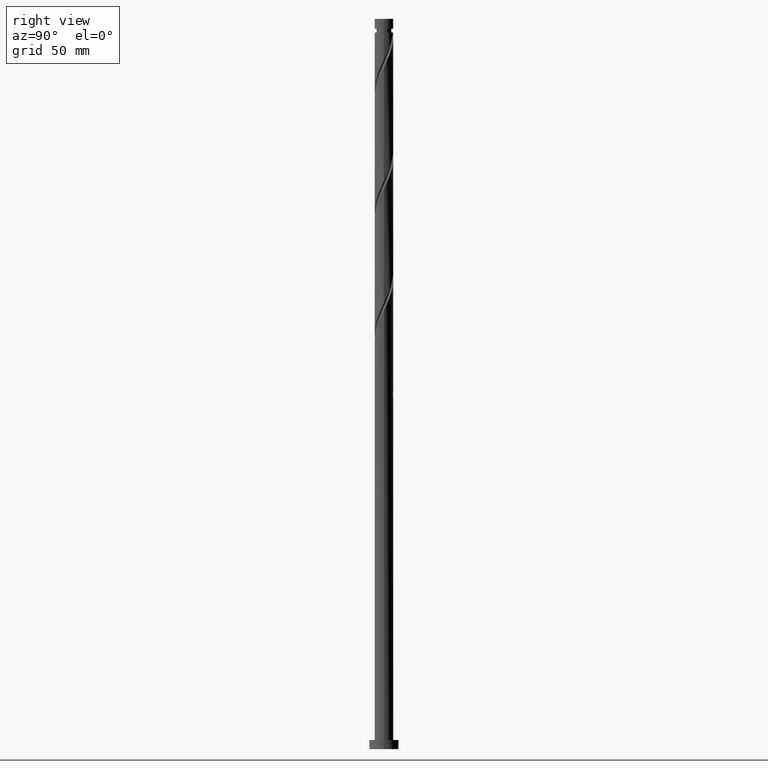
[diagram: clean part render]
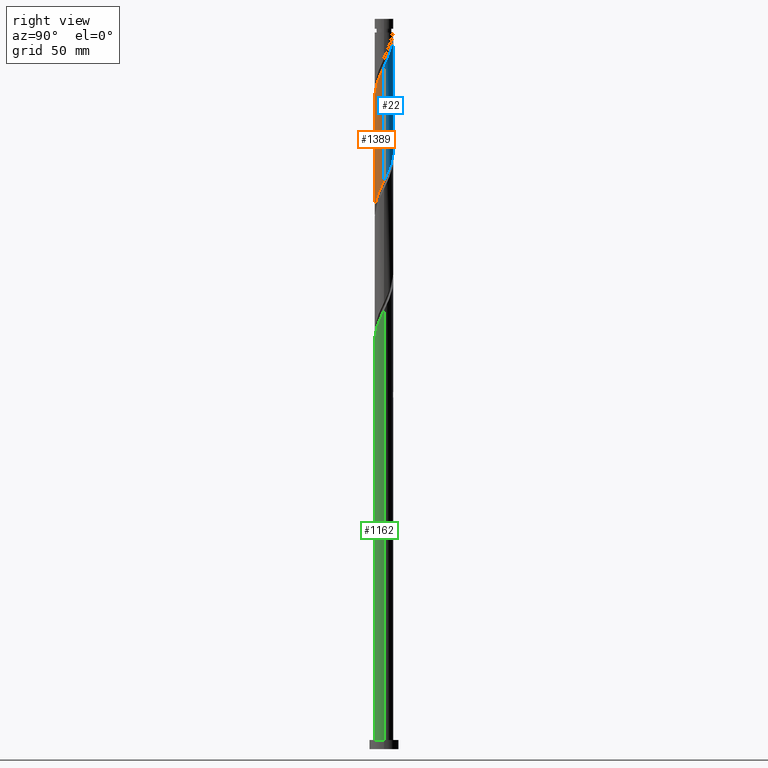
[diagram: same view with three faces highlighted in distinct colors, each labeled with its STEP entity id]
A machine part, right view with three faces highlighted in distinct colors.
Their STEP definitions:

[orange] entity #1389 — the highlighted cylindrical surface (edge-blend (fillet) strip) has radius 5.1 mm, axis along (-0, -0, -1).
#13 = CARTESIAN_POINT ( 'NONE',  ( 2.116689710232769972, -4.640002658468494801, 299.1884100595373752 ) ) ;
#18 = EDGE_CURVE ( 'NONE', #1560, #1776, #1267, .T. ) ;
#21 = CARTESIAN_POINT ( 'NONE',  ( -3.035145759683210098, -4.098522931188395724, 350.2995211706484042 ) ) ;
#36 = CARTESIAN_POINT ( 'NONE',  ( 4.703541288989194769, -2.043044105940181154, 306.9661878373151467 ) ) ;
#46 = CARTESIAN_POINT ( 'NONE',  ( 5.100000000000010303, -2.242262313099772279E-16, 373.7296334826825159 ) ) ;
#76 = EDGE_LOOP ( 'NONE', ( #1873, #561, #551, #1957 ) ) ;
#128 = CARTESIAN_POINT ( 'NONE',  ( 2.960015320744664891, -4.153108390224959479, 363.6328545039818323 ) ) ;
#142 = CARTESIAN_POINT ( 'NONE',  ( 4.393329915788834583, -2.590106609974761387, 368.0772989484262894 ) ) ;
#147 = CARTESIAN_POINT ( 'NONE',  ( 5.076705030977432642, -0.4868942682435490332, 310.2995211706486316 ) ) ;
#159 = CARTESIAN_POINT ( 'NONE',  ( -2.523506039414606050, -4.464218536886502164, 289.1884100595374321 ) ) ;
#169 = CARTESIAN_POINT ( 'NONE',  ( -4.439763080642554094, -2.509682009291900329, 345.8550767262038903 ) ) ;
#173 = CARTESIAN_POINT ( 'NONE',  ( 5.099999999999999645, 4.275246810310268444E-15, 311.3138533030589201 ) ) ;
#186 = CARTESIAN_POINT ( 'NONE',  ( 1.629005779183731795, -4.862475711757238805, 298.0772989484262325 ) ) ;
#200 = CARTESIAN_POINT ( 'NONE',  ( 0.000000000000000000, 0.000000000000000000, 400.0000000000000000 ) ) ;
#245 = CARTESIAN_POINT ( 'NONE',  ( -5.100000000000010303, -8.580390451461796036E-15, 340.3963001493492584 ) ) ;
#256 = CARTESIAN_POINT ( 'NONE',  ( 5.099999999999999645, 4.275246810310268444E-15, 311.3138533030589201 ) ) ;
#306 = CARTESIAN_POINT ( 'NONE',  ( 5.100000000000010303, -0.2905660609768122571, 373.1240421732980508 ) ) ;
#314 = VECTOR ( 'NONE', #583, 1000.000000000000000 ) ;
#320 = CARTESIAN_POINT ( 'NONE',  ( 1.014887185848756701, -4.998000000000008214, 359.1884100595373752 ) ) ;
#349 = CARTESIAN_POINT ( 'NONE',  ( -5.006116031791203902, -1.111814801253403262, 280.2995211706484611 ) ) ;
#399 =( BOUNDED_CURVE ( )  B_SPLINE_CURVE ( 2, ( #1803, #1029, #950, #456, #1121, #496, #169, #1582, #791, #1883, #21, #1863, #804, #1542, #1093, #1850, #1430, #1278, #320, #767, #1896, #937, #128, #1736, #484, #647, #142, #1137, #1696, #1708, #2015, #306, #1720 ),
 .UNSPECIFIED., .F., .T. ) 
 B_SPLINE_CURVE_WITH_KNOTS ( ( 3, 2, 2, 2, 2, 2, 2, 2, 2, 2, 2, 2, 2, 2, 2, 2, 3 ),
 ( 0.5545286012773116280, 0.5583333333333333481, 0.5666666666666666519, 0.5749999999999999556, 0.5833333333333332593, 0.5916666666666666741, 0.5999999999999999778, 0.6083333333333333925, 0.6166666666666666963, 0.6250000000000000000, 0.6333333333333333037, 0.6416666666666666075, 0.6500000000000000222, 0.6583333333333333259, 0.6666666666666667407, 0.6750000000000000444, 0.6795286012773114059 ),
 .UNSPECIFIED. ) 
 CURVE ( )  GEOMETRIC_REPRESENTATION_ITEM ( )  RATIONAL_B_SPLINE_CURVE ( ( 0.9066196499552303667, 0.9068171577856432020, 0.9090909090909421453, 0.9041108139711903080, 0.9090909090909421453, 0.9041108139711903080, 0.9090909090909421453, 0.9041108139711903080, 0.9090909090909421453, 0.9041108139711903080, 0.9090909090909421453, 0.9041108139711903080, 0.9090909090909421453, 0.9041108139711903080, 0.9090909090909421453, 0.9041108139711903080, 0.9090909090909421453, 0.9041108139711903080, 0.9090909090909421453, 0.9041108139711903080, 0.9090909090909421453, 0.9041108139711903080, 0.9090909090909421453, 0.9041108139711903080, 0.9090909090909421453, 0.9041108139711903080, 0.9090909090909421453, 0.9041108139711903080, 0.9090909090909421453, 0.9041108139711903080, 0.9090909090909421453, 0.9063845652764892513, 0.9066196499552303667 ) ) 
 REPRESENTATION_ITEM ( '' )  );
#445 = DIRECTION ( 'NONE',  ( -0.000000000000000000, -0.000000000000000000, -1.000000000000000000 ) ) ;
#447 = CARTESIAN_POINT ( 'NONE',  ( 1.105724163441033081, -4.978692004370487645, 296.9661878373151467 ) ) ;
#456 = CARTESIAN_POINT ( 'NONE',  ( -5.025530381258464629, -1.020477468193842885, 342.5217433928709170 ) ) ;
#461 = CARTESIAN_POINT ( 'NONE',  ( -4.393329915788831030, -2.590106609974752505, 283.6328545039817755 ) ) ;
#473 = CARTESIAN_POINT ( 'NONE',  ( 5.100000000000001421, 6.245698675651501825E-16, 400.0000000000000000 ) ) ;
#476 = CYLINDRICAL_SURFACE ( 'NONE', #1649, 5.100000000000001421 ) ;
#484 = CARTESIAN_POINT ( 'NONE',  ( 3.758811671682795286, -3.446931217303483397, 365.8550767262038903 ) ) ;
#488 = CARTESIAN_POINT ( 'NONE',  ( 5.025530381258454860, -1.020477468193842663, 309.1884100595373184 ) ) ;
#496 = CARTESIAN_POINT ( 'NONE',  ( -4.703541288989206315, -2.043044105940181154, 344.7439656150928613 ) ) ;
#551 = ORIENTED_EDGE ( 'NONE', *, *, #1967, .T. ) ;
#556 = CARTESIAN_POINT ( 'NONE',  ( -5.100000000000001421, 0.000000000000000000, 400.0000000000000000 ) ) ;
#559 = VERTEX_POINT ( 'NONE', #245 ) ;
#561 = ORIENTED_EDGE ( 'NONE', *, *, #1970, .F. ) ;
#583 = DIRECTION ( 'NONE',  ( -0.000000000000000000, -0.000000000000000000, -1.000000000000000000 ) ) ;
#610 = CARTESIAN_POINT ( 'NONE',  ( -1.014887185848756923, -4.998000000000000220, 292.5217433928708601 ) ) ;
#626 = CARTESIAN_POINT ( 'NONE',  ( 4.864535835123822594, -1.531760787067013796, 308.0772989484263462 ) ) ;
#639 = CARTESIAN_POINT ( 'NONE',  ( -2.960015320744664002, -4.153108390224947932, 288.0772989484262894 ) ) ;
#647 = CARTESIAN_POINT ( 'NONE',  ( 4.121098741290865064, -3.051864191043566876, 366.9661878373153172 ) ) ;
#661 = CARTESIAN_POINT ( 'NONE',  ( 4.439763080642545212, -2.509682009291898552, 305.8550767262040608 ) ) ;
#767 = CARTESIAN_POINT ( 'NONE',  ( 1.540198153706607842, -4.891331058450442804, 360.2995211706486316 ) ) ;
#772 = CARTESIAN_POINT ( 'NONE',  ( 5.100000000000001421, -0.2440043963624089207, 310.8053047774948823 ) ) ;
#791 = CARTESIAN_POINT ( 'NONE',  ( -3.820951375190253074, -3.377918084920325192, 348.0772989484262894 ) ) ;
#804 = CARTESIAN_POINT ( 'NONE',  ( -2.116689710232775745, -4.640002658468502794, 352.5217433928706328 ) ) ;
#810 = CARTESIAN_POINT ( 'NONE',  ( 3.465917878084596282, -3.779516257197027773, 302.5217433928707464 ) ) ;
#824 = CARTESIAN_POINT ( 'NONE',  ( -4.121098741290859735, -3.051864191043557994, 284.7439656150929750 ) ) ;
#937 = CARTESIAN_POINT ( 'NONE',  ( 2.523506039414608271, -4.464218536886513711, 362.5217433928705759 ) ) ;
#941 = CARTESIAN_POINT ( 'NONE',  ( 4.175984872295889438, -2.976319912643619059, 304.7439656150928613 ) ) ;
#950 = CARTESIAN_POINT ( 'NONE',  ( -5.076705030977442412, -0.4868942682435451474, 341.4106322817595469 ) ) ;
#966 = CARTESIAN_POINT ( 'NONE',  ( 2.604373641281805707, -4.417529605179755237, 300.2995211706485179 ) ) ;
#975 = VERTEX_POINT ( 'NONE', #1717 ) ;
#978 = DIRECTION ( 'NONE',  ( -1.000000000000000000, 0.000000000000000000, 0.000000000000000000 ) ) ;
#1021 =( BOUNDED_CURVE ( )  B_SPLINE_CURVE ( 2, ( #173, #772, #147, #488, #626, #36, #661, #941, #1568, #810, #1699, #966, #13, #186, #447, #1458, #1690, #1901, #610, #1853, #1141, #159, #639, #1865, #1740, #824, #461, #1257, #1097, #349, #1110, #1556, #1585 ),
 .UNSPECIFIED., .F., .T. ) 
 B_SPLINE_CURVE_WITH_KNOTS ( ( 3, 2, 2, 2, 2, 2, 2, 2, 2, 2, 2, 2, 2, 2, 2, 2, 3 ),
 ( 0.5545286012773111839, 0.5583333333333333481, 0.5666666666666666519, 0.5749999999999999556, 0.5833333333333333703, 0.5916666666666666741, 0.5999999999999999778, 0.6083333333333332815, 0.6166666666666666963, 0.6250000000000000000, 0.6333333333333333037, 0.6416666666666667185, 0.6500000000000000222, 0.6583333333333333259, 0.6666666666666666297, 0.6750000000000000444, 0.6795286012773114059 ),
 .UNSPECIFIED. ) 
 CURVE ( )  GEOMETRIC_REPRESENTATION_ITEM ( )  RATIONAL_B_SPLINE_CURVE ( ( 0.9066196499552228172, 0.9068171577856354304, 0.9090909090909344847, 0.9041108139711828695, 0.9090909090909344847, 0.9041108139711828695, 0.9090909090909344847, 0.9041108139711828695, 0.9090909090909344847, 0.9041108139711828695, 0.9090909090909344847, 0.9041108139711828695, 0.9090909090909344847, 0.9041108139711828695, 0.9090909090909344847, 0.9041108139711828695, 0.9090909090909344847, 0.9041108139711828695, 0.9090909090909344847, 0.9041108139711828695, 0.9090909090909344847, 0.9041108139711828695, 0.9090909090909344847, 0.9041108139711828695, 0.9090909090909344847, 0.9041108139711828695, 0.9090909090909344847, 0.9041108139711828695, 0.9090909090909344847, 0.9041108139711828695, 0.9090909090909344847, 0.9063845652764817018, 0.9066196499552228172 ) ) 
 REPRESENTATION_ITEM ( '' )  );
#1029 = CARTESIAN_POINT ( 'NONE',  ( -5.100000000000010303, -0.2440043963624325962, 340.9048486749133531 ) ) ;
#1093 = CARTESIAN_POINT ( 'NONE',  ( -1.105724163441039520, -4.978692004370494750, 354.7439656150928045 ) ) ;
#1097 = CARTESIAN_POINT ( 'NONE',  ( -4.835838561039001782, -1.620081915079675916, 281.4106322817594901 ) ) ;
#1110 = CARTESIAN_POINT ( 'NONE',  ( -5.066997856243808052, -0.5792518664800759831, 279.1884100595373752 ) ) ;
#1121 = CARTESIAN_POINT ( 'NONE',  ( -4.864535835123834140, -1.531760787067011576, 343.6328545039817186 ) ) ;
#1137 = CARTESIAN_POINT ( 'NONE',  ( 4.665561090286807655, -2.128349028905956786, 369.1884100595374889 ) ) ;
#1141 = CARTESIAN_POINT ( 'NONE',  ( -2.031852096560608167, -4.677774797668464934, 290.2995211706485179 ) ) ;
#1142 = VECTOR ( 'NONE', #445, 1000.000000000000000 ) ;
#1257 = CARTESIAN_POINT ( 'NONE',  ( -4.665561090286799661, -2.128349028905950568, 282.5217433928707464 ) ) ;
#1267 = LINE ( 'NONE', #473, #1142 ) ;
#1278 = CARTESIAN_POINT ( 'NONE',  ( 0.4895762179909043388, -5.104668941549578065, 358.0772989484262894 ) ) ;
#1366 = EDGE_CURVE ( 'NONE', #1776, #975, #1021, .T. ) ;
#1389 = ADVANCED_FACE ( 'NONE', ( #1875 ), #476, .T. ) ;
#1430 = CARTESIAN_POINT ( 'NONE',  ( -0.04643316485371892788, -5.099788619266663048, 356.9661878373150898 ) ) ;
#1458 = CARTESIAN_POINT ( 'NONE',  ( 0.5824425476983365879, -5.094908296983735596, 295.8550767262040608 ) ) ;
#1542 = CARTESIAN_POINT ( 'NONE',  ( -1.629005779183739344, -4.862475711757246799, 353.6328545039818891 ) ) ;
#1556 = CARTESIAN_POINT ( 'NONE',  ( -5.099999999999998757, -0.2905660609768085934, 278.5861112791100709 ) ) ;
#1560 = VERTEX_POINT ( 'NONE', #46 ) ;
#1568 = CARTESIAN_POINT ( 'NONE',  ( 3.820951375190243748, -3.377918084920323860, 303.6328545039817186 ) ) ;
#1582 = CARTESIAN_POINT ( 'NONE',  ( -4.175984872295902761, -2.976319912643621279, 346.9661878373151467 ) ) ;
#1585 = CARTESIAN_POINT ( 'NONE',  ( -5.099999999999999645, -6.517509123410059360E-15, 277.9805199697255489 ) ) ;
#1649 = AXIS2_PLACEMENT_3D ( 'NONE', #200, #1712, #978 ) ;
#1690 = CARTESIAN_POINT ( 'NONE',  ( 0.04643316485371448699, -5.099788619266650613, 294.7439656150929750 ) ) ;
#1696 = CARTESIAN_POINT ( 'NONE',  ( 4.835838561039007999, -1.620081915079683466, 370.2995211706484611 ) ) ;
#1699 = CARTESIAN_POINT ( 'NONE',  ( 3.035145759683200772, -4.098522931188392171, 301.4106322817594332 ) ) ;
#1708 = CARTESIAN_POINT ( 'NONE',  ( 5.006116031791212784, -1.111814801253410590, 371.4106322817596038 ) ) ;
#1712 = DIRECTION ( 'NONE',  ( -0.000000000000000000, -0.000000000000000000, -1.000000000000000000 ) ) ;
#1717 = CARTESIAN_POINT ( 'NONE',  ( -5.099999999999999645, -6.517509123410059360E-15, 277.9805199697255489 ) ) ;
#1720 = CARTESIAN_POINT ( 'NONE',  ( 5.100000000000010303, -2.242262313099772279E-16, 373.7296334826825159 ) ) ;
#1736 = CARTESIAN_POINT ( 'NONE',  ( 3.396524602074725951, -3.841998243563404802, 364.7439656150929750 ) ) ;
#1740 = CARTESIAN_POINT ( 'NONE',  ( -3.758811671682789957, -3.446931217303477180, 285.8550767262040040 ) ) ;
#1776 = VERTEX_POINT ( 'NONE', #256 ) ;
#1803 = CARTESIAN_POINT ( 'NONE',  ( -5.100000000000010303, -8.580390451461796036E-15, 340.3963001493492584 ) ) ;
#1850 = CARTESIAN_POINT ( 'NONE',  ( -0.5824425476983398076, -5.094908296983747142, 355.8550767262040608 ) ) ;
#1853 = CARTESIAN_POINT ( 'NONE',  ( -1.540198153706608508, -4.891331058450428593, 291.4106322817595469 ) ) ;
#1863 = CARTESIAN_POINT ( 'NONE',  ( -2.604373641281813256, -4.417529605179761454, 351.4106322817596606 ) ) ;
#1865 = CARTESIAN_POINT ( 'NONE',  ( -3.396524602074721955, -3.841998243563394144, 286.9661878373152035 ) ) ;
#1873 = ORIENTED_EDGE ( 'NONE', *, *, #18, .F. ) ;
#1875 = FACE_OUTER_BOUND ( 'NONE', #76, .T. ) ;
#1883 = CARTESIAN_POINT ( 'NONE',  ( -3.465917878084604720, -3.779516257197033546, 349.1884100595374321 ) ) ;
#1896 = CARTESIAN_POINT ( 'NONE',  ( 2.031852096560607279, -4.677774797668475593, 361.4106322817596606 ) ) ;
#1901 = CARTESIAN_POINT ( 'NONE',  ( -0.4895762179909078915, -5.104668941549565631, 293.6328545039817755 ) ) ;
#1954 = LINE ( 'NONE', #556, #314 ) ;
#1957 = ORIENTED_EDGE ( 'NONE', *, *, #1366, .F. ) ;
#1967 = EDGE_CURVE ( 'NONE', #559, #975, #1954, .T. ) ;
#1970 = EDGE_CURVE ( 'NONE', #559, #1560, #399, .T. ) ;
#2015 = CARTESIAN_POINT ( 'NONE',  ( 5.066997856243816045, -0.5792518664800790917, 372.5217433928707464 ) ) ;

[blue] entity #22 — the highlighted cylindrical surface (edge-blend (fillet) strip) has radius 5.1 mm, axis along (-0, -0, -1).
#18 = EDGE_CURVE ( 'NONE', #1560, #1776, #1267, .T. ) ;
#22 = ADVANCED_FACE ( 'NONE', ( #1083 ), #1722, .T. ) ;
#33 = DIRECTION ( 'NONE',  ( -1.000000000000000000, 0.000000000000000000, 0.000000000000000000 ) ) ;
#46 = CARTESIAN_POINT ( 'NONE',  ( 5.100000000000010303, -2.242262313099772279E-16, 373.7296334826825159 ) ) ;
#82 = CARTESIAN_POINT ( 'NONE',  ( 4.864535835123834140, 1.531760787067009799, 376.9661878373151467 ) ) ;
#96 = CARTESIAN_POINT ( 'NONE',  ( -1.105724163441035079, 4.978692004370486757, 330.2995211706483474 ) ) ;
#103 = CARTESIAN_POINT ( 'NONE',  ( -0.04643316485371556945, 5.099788619266650613, 328.0772989484261757 ) ) ;
#112 = CARTESIAN_POINT ( 'NONE',  ( -3.820951375190244637, 3.377918084920321196, 336.9661878373152035 ) ) ;
#120 = CARTESIAN_POINT ( 'NONE',  ( 4.393329915788831030, 2.590106609974751617, 316.9661878373152604 ) ) ;
#247 = CARTESIAN_POINT ( 'NONE',  ( -5.025530381258454860, 1.020477468193841775, 342.5217433928706896 ) ) ;
#256 = CARTESIAN_POINT ( 'NONE',  ( 5.099999999999999645, 4.275246810310268444E-15, 311.3138533030589201 ) ) ;
#265 = CARTESIAN_POINT ( 'NONE',  ( 2.960015320744665779, 4.153108390224945268, 321.4106322817596038 ) ) ;
#271 = CARTESIAN_POINT ( 'NONE',  ( -1.629005779183733349, 4.862475711757238805, 331.4106322817596038 ) ) ;
#284 = CARTESIAN_POINT ( 'NONE',  ( -5.100000000000000533, 3.901536424793636099E-15, 344.6471866363921777 ) ) ;
#333 = DIRECTION ( 'NONE',  ( -0.000000000000000000, -0.000000000000000000, -1.000000000000000000 ) ) ;
#334 = ORIENTED_EDGE ( 'NONE', *, *, #1332, .T. ) ;
#369 = CARTESIAN_POINT ( 'NONE',  ( 5.025530381258464629, 1.020477468193841997, 375.8550767262041177 ) ) ;
#386 = CARTESIAN_POINT ( 'NONE',  ( 2.116689710232775745, 4.640002658468502794, 385.8550767262040040 ) ) ;
#395 = CARTESIAN_POINT ( 'NONE',  ( -5.099999999999966782, 0.000000000000000000, 392.5217433928706896 ) ) ;
#402 = CARTESIAN_POINT ( 'NONE',  ( -4.439763080642545212, 2.509682009291897664, 339.1884100595374321 ) ) ;
#418 = CARTESIAN_POINT ( 'NONE',  ( -2.116689710232770416, 4.640002658468494801, 332.5217433928706896 ) ) ;
#426 = DIRECTION ( 'NONE',  ( -0.000000000000000000, -0.000000000000000000, -1.000000000000000000 ) ) ;
#445 = DIRECTION ( 'NONE',  ( -0.000000000000000000, -0.000000000000000000, -1.000000000000000000 ) ) ;
#473 = CARTESIAN_POINT ( 'NONE',  ( 5.100000000000001421, 6.245698675651501825E-16, 400.0000000000000000 ) ) ;
#516 = VECTOR ( 'NONE', #598, 1000.000000000000000 ) ;
#530 = CARTESIAN_POINT ( 'NONE',  ( -1.014887185848756035, 4.998000000000004661, 392.5217433928708033 ) ) ;
#534 = AXIS2_PLACEMENT_3D ( 'NONE', #1687, #333, #33 ) ;
#552 = CARTESIAN_POINT ( 'NONE',  ( -5.100000000000001421, 0.000000000000000000, 400.0000000000000000 ) ) ;
#565 = CARTESIAN_POINT ( 'NONE',  ( 4.835838561039002670, 1.620081915079673918, 314.7439656150929750 ) ) ;
#573 = CARTESIAN_POINT ( 'NONE',  ( -2.604373641281807039, 4.417529605179755237, 333.6328545039818323 ) ) ;
#586 = CARTESIAN_POINT ( 'NONE',  ( 0.000000000000000000, 0.000000000000000000, 392.5217433928706896 ) ) ;
#589 = ORIENTED_EDGE ( 'NONE', *, *, #18, .T. ) ;
#591 = VERTEX_POINT ( 'NONE', #1340 ) ;
#598 = DIRECTION ( 'NONE',  ( -0.000000000000000000, -0.000000000000000000, -1.000000000000000000 ) ) ;
#675 = CARTESIAN_POINT ( 'NONE',  ( 3.035145759683210098, 4.098522931188395724, 383.6328545039817186 ) ) ;
#688 = ORIENTED_EDGE ( 'NONE', *, *, #1157, .F. ) ;
#690 = CARTESIAN_POINT ( 'NONE',  ( 3.465917878084604720, 3.779516257197033546, 382.5217433928706328 ) ) ;
#709 = DIRECTION ( 'NONE',  ( -1.000000000000000000, 0.000000000000000000, 0.000000000000000000 ) ) ;
#725 = CARTESIAN_POINT ( 'NONE',  ( 5.099999999999999645, 4.275246810310268444E-15, 311.3138533030589201 ) ) ;
#782 = ORIENTED_EDGE ( 'NONE', *, *, #1459, .F. ) ;
#812 =( BOUNDED_CURVE ( )  B_SPLINE_CURVE ( 2, ( #284, #1360, #1647, #247, #1990, #1972, #402, #1059, #112, #1980, #1828, #573, #418, #271, #96, #1961, #103, #1370, #1655, #1660, #884, #1072, #265, #878, #1377, #1509, #120, #1386, #565, #896, #1204, #1518, #725 ),
 .UNSPECIFIED., .F., .T. ) 
 B_SPLINE_CURVE_WITH_KNOTS ( ( 3, 2, 2, 2, 2, 2, 2, 2, 2, 2, 2, 2, 2, 2, 2, 2, 3 ),
 ( 0.4295286012773115170, 0.4333333333333333481, 0.4416666666666666519, 0.4500000000000000111, 0.4583333333333333148, 0.4666666666666666741, 0.4749999999999999778, 0.4833333333333333370, 0.4916666666666666408, 0.5000000000000000000, 0.5083333333333333037, 0.5166666666666667185, 0.5250000000000000222, 0.5333333333333333259, 0.5416666666666666297, 0.5500000000000000444, 0.5545286012773111839 ),
 .UNSPECIFIED. ) 
 CURVE ( )  GEOMETRIC_REPRESENTATION_ITEM ( )  RATIONAL_B_SPLINE_CURVE ( ( 0.9066196499552229282, 0.9068171577856356524, 0.9090909090909344847, 0.9041108139711828695, 0.9090909090909344847, 0.9041108139711828695, 0.9090909090909344847, 0.9041108139711828695, 0.9090909090909344847, 0.9041108139711828695, 0.9090909090909344847, 0.9041108139711828695, 0.9090909090909344847, 0.9041108139711828695, 0.9090909090909344847, 0.9041108139711828695, 0.9090909090909344847, 0.9041108139711828695, 0.9090909090909344847, 0.9041108139711828695, 0.9090909090909344847, 0.9041108139711828695, 0.9090909090909344847, 0.9041108139711828695, 0.9090909090909344847, 0.9041108139711828695, 0.9090909090909344847, 0.9041108139711828695, 0.9090909090909344847, 0.9041108139711828695, 0.9090909090909344847, 0.9063845652764819238, 0.9066196499552228172 ) ) 
 REPRESENTATION_ITEM ( '' )  );
#853 = CARTESIAN_POINT ( 'NONE',  ( 5.100000000000011191, 0.2440043963624162204, 374.2381820082465538 ) ) ;
#865 = CARTESIAN_POINT ( 'NONE',  ( 4.175984872295905426, 2.976319912643619947, 380.2995211706486316 ) ) ;
#870 = CARTESIAN_POINT ( 'NONE',  ( 2.604373641281815921, 4.417529605179759677, 384.7439656150929750 ) ) ;
#878 = CARTESIAN_POINT ( 'NONE',  ( 3.396524602074722399, 3.841998243563394144, 320.2995211706484611 ) ) ;
#884 = CARTESIAN_POINT ( 'NONE',  ( 2.031852096560608611, 4.677774797668464934, 323.6328545039817755 ) ) ;
#896 = CARTESIAN_POINT ( 'NONE',  ( 5.006116031791203902, 1.111814801253401486, 313.6328545039818323 ) ) ;
#898 =( BOUNDED_CURVE ( )  B_SPLINE_CURVE ( 2, ( #1302, #853, #1946, #369, #82, #1763, #1630, #865, #1023, #690, #675, #870, #386, #1334, #1312, #1639, #1612, #1489, #998 ),
 .UNSPECIFIED., .F., .T. ) 
 B_SPLINE_CURVE_WITH_KNOTS ( ( 3, 2, 2, 2, 2, 2, 2, 2, 2, 3 ),
 ( 0.6795286012773114059, 0.6833333333333333481, 0.6916666666666666519, 0.6999999999999999556, 0.7083333333333332593, 0.7166666666666666741, 0.7249999999999999778, 0.7333333333333333925, 0.7416666666666666963, 0.7500000000000000000 ),
 .UNSPECIFIED. ) 
 CURVE ( )  GEOMETRIC_REPRESENTATION_ITEM ( )  RATIONAL_B_SPLINE_CURVE ( ( 0.9066196499552303667, 0.9068171577856432020, 0.9090909090909421453, 0.9041108139711903080, 0.9090909090909421453, 0.9041108139711903080, 0.9090909090909421453, 0.9041108139711903080, 0.9090909090909421453, 0.9041108139711903080, 0.9090909090909421453, 0.9041108139711903080, 0.9090909090909421453, 0.9041108139711903080, 0.9090909090909421453, 0.9041108139711903080, 0.9090909090909421453, 0.9041108139711903080, 0.9090909090909421453 ) ) 
 REPRESENTATION_ITEM ( '' )  );
#935 = VERTEX_POINT ( 'NONE', #530 ) ;
#998 = CARTESIAN_POINT ( 'NONE',  ( -1.014887185848756035, 4.998000000000003773, 392.5217433928707464 ) ) ;
#1000 = LINE ( 'NONE', #552, #516 ) ;
#1023 = CARTESIAN_POINT ( 'NONE',  ( 3.820951375190254407, 3.377918084920323416, 381.4106322817594901 ) ) ;
#1059 = CARTESIAN_POINT ( 'NONE',  ( -4.175984872295892991, 2.976319912643616838, 338.0772989484262894 ) ) ;
#1072 = CARTESIAN_POINT ( 'NONE',  ( 2.523506039414606050, 4.464218536886502164, 322.5217433928706896 ) ) ;
#1083 = FACE_OUTER_BOUND ( 'NONE', #1910, .T. ) ;
#1142 = VECTOR ( 'NONE', #445, 1000.000000000000000 ) ;
#1157 = EDGE_CURVE ( 'NONE', #1641, #591, #1000, .T. ) ;
#1204 = CARTESIAN_POINT ( 'NONE',  ( 5.066997856243808052, 0.5792518664800752060, 312.5217433928707464 ) ) ;
#1267 = LINE ( 'NONE', #473, #1142 ) ;
#1284 = AXIS2_PLACEMENT_3D ( 'NONE', #586, #426, #709 ) ;
#1302 = CARTESIAN_POINT ( 'NONE',  ( 5.100000000000010303, -2.242262313099772279E-16, 373.7296334826825159 ) ) ;
#1312 = CARTESIAN_POINT ( 'NONE',  ( 1.105724163441041963, 4.978692004370493862, 388.0772989484262325 ) ) ;
#1332 = EDGE_CURVE ( 'NONE', #1641, #935, #1477, .T. ) ;
#1334 = CARTESIAN_POINT ( 'NONE',  ( 1.629005779183740232, 4.862475711757246799, 386.9661878373152035 ) ) ;
#1340 = CARTESIAN_POINT ( 'NONE',  ( -5.100000000000000533, 3.901536424793636099E-15, 344.6471866363921777 ) ) ;
#1360 = CARTESIAN_POINT ( 'NONE',  ( -5.099999999999998757, 0.2440043963624294598, 344.1386381108281398 ) ) ;
#1370 = CARTESIAN_POINT ( 'NONE',  ( 0.4895762179909056155, 5.104668941549565631, 326.9661878373151467 ) ) ;
#1377 = CARTESIAN_POINT ( 'NONE',  ( 3.758811671682789957, 3.446931217303477180, 319.1884100595373752 ) ) ;
#1381 = ORIENTED_EDGE ( 'NONE', *, *, #1857, .F. ) ;
#1386 = CARTESIAN_POINT ( 'NONE',  ( 4.665561090286799661, 2.128349028905950568, 315.8550767262041745 ) ) ;
#1459 = EDGE_CURVE ( 'NONE', #1560, #935, #898, .T. ) ;
#1477 = CIRCLE ( 'NONE', #1284, 5.099999999999966782 ) ;
#1489 = CARTESIAN_POINT ( 'NONE',  ( -0.4895762179909013967, 5.104668941549578953, 391.4106322817596606 ) ) ;
#1509 = CARTESIAN_POINT ( 'NONE',  ( 4.121098741290860623, 3.051864191043555774, 318.0772989484262894 ) ) ;
#1518 = CARTESIAN_POINT ( 'NONE',  ( 5.099999999999997868, 0.2905660609768206393, 311.9194446124435558 ) ) ;
#1560 = VERTEX_POINT ( 'NONE', #46 ) ;
#1612 = CARTESIAN_POINT ( 'NONE',  ( 0.04643316485371956626, 5.099788619266663048, 390.2995211706484042 ) ) ;
#1630 = CARTESIAN_POINT ( 'NONE',  ( 4.439763080642554094, 2.509682009291899440, 379.1884100595374321 ) ) ;
#1639 = CARTESIAN_POINT ( 'NONE',  ( 0.5824425476983406957, 5.094908296983747142, 389.1884100595374321 ) ) ;
#1641 = VERTEX_POINT ( 'NONE', #395 ) ;
#1647 = CARTESIAN_POINT ( 'NONE',  ( -5.076705030977432642, 0.4868942682435472569, 343.6328545039818323 ) ) ;
#1655 = CARTESIAN_POINT ( 'NONE',  ( 1.014887185848757811, 4.998000000000000220, 325.8550767262038903 ) ) ;
#1660 = CARTESIAN_POINT ( 'NONE',  ( 1.540198153706611839, 4.891331058450428593, 324.7439656150929750 ) ) ;
#1687 = CARTESIAN_POINT ( 'NONE',  ( 0.000000000000000000, 0.000000000000000000, 400.0000000000000000 ) ) ;
#1722 = CYLINDRICAL_SURFACE ( 'NONE', #534, 5.100000000000001421 ) ;
#1763 = CARTESIAN_POINT ( 'NONE',  ( 4.703541288989208979, 2.043044105940178046, 378.0772989484262894 ) ) ;
#1776 = VERTEX_POINT ( 'NONE', #256 ) ;
#1828 = CARTESIAN_POINT ( 'NONE',  ( -3.035145759683201661, 4.098522931188391283, 334.7439656150929750 ) ) ;
#1857 = EDGE_CURVE ( 'NONE', #591, #1776, #812, .T. ) ;
#1910 = EDGE_LOOP ( 'NONE', ( #782, #589, #1381, #688, #334 ) ) ;
#1946 = CARTESIAN_POINT ( 'NONE',  ( 5.076705030977442412, 0.4868942682435424829, 374.7439656150928045 ) ) ;
#1961 = CARTESIAN_POINT ( 'NONE',  ( -0.5824425476983373651, 5.094908296983734708, 329.1884100595373752 ) ) ;
#1972 = CARTESIAN_POINT ( 'NONE',  ( -4.703541288989194769, 2.043044105940179822, 340.2995211706484611 ) ) ;
#1980 = CARTESIAN_POINT ( 'NONE',  ( -3.465917878084596726, 3.779516257197027773, 335.8550767262040608 ) ) ;
#1990 = CARTESIAN_POINT ( 'NONE',  ( -4.864535835123822594, 1.531760787067011131, 341.4106322817596606 ) ) ;

[green] entity #1162 — the highlighted cylindrical surface (edge-blend (fillet) strip) has radius 5.1 mm, axis along (-0, -0, -1).
#41 = CARTESIAN_POINT ( 'NONE',  ( 0.4895762179909043388, -5.104668941549578065, 224.7439656150929750 ) ) ;
#60 = CARTESIAN_POINT ( 'NONE',  ( 4.393329915788834583, -2.590106609974761387, 234.7439656150929181 ) ) ;
#70 = CARTESIAN_POINT ( 'NONE',  ( -3.820951375190253074, -3.377918084920325192, 214.7439656150928897 ) ) ;
#78 = CARTESIAN_POINT ( 'NONE',  ( 0.000000000000000000, 0.000000000000000000, 5.000000000000000000 ) ) ;
#89 = AXIS2_PLACEMENT_3D ( 'NONE', #703, #1504, #1193 ) ;
#108 = ORIENTED_EDGE ( 'NONE', *, *, #1589, .T. ) ;
#135 = VERTEX_POINT ( 'NONE', #259 ) ;
#194 = CARTESIAN_POINT ( 'NONE',  ( -2.116689710232775745, -4.640002658468502794, 219.1884100595373184 ) ) ;
#208 = CARTESIAN_POINT ( 'NONE',  ( 2.523506039414608271, -4.464218536886513711, 229.1884100595374321 ) ) ;
#259 = CARTESIAN_POINT ( 'NONE',  ( 5.100000000000010303, 3.617516531800965792E-15, 240.3963001493492300 ) ) ;
#260 = VERTEX_POINT ( 'NONE', #936 ) ;
#300 = CARTESIAN_POINT ( 'NONE',  ( 5.100000000000001421, 6.245698675651501825E-16, 400.0000000000000000 ) ) ;
#317 = ORIENTED_EDGE ( 'NONE', *, *, #587, .T. ) ;
#342 = EDGE_CURVE ( 'NONE', #881, #135, #828, .T. ) ;
#343 = CARTESIAN_POINT ( 'NONE',  ( -4.175984872295902761, -2.976319912643621279, 213.6328545039818323 ) ) ;
#354 = CARTESIAN_POINT ( 'NONE',  ( 5.100000000000010303, 3.617516531800965792E-15, 240.3963001493492300 ) ) ;
#435 = CYLINDRICAL_SURFACE ( 'NONE', #89, 5.100000000000001421 ) ;
#449 = VERTEX_POINT ( 'NONE', #681 ) ;
#486 = EDGE_LOOP ( 'NONE', ( #504, #1391, #108, #317 ) ) ;
#504 = ORIENTED_EDGE ( 'NONE', *, *, #731, .F. ) ;
#505 = CARTESIAN_POINT ( 'NONE',  ( 5.100000000000010303, -0.2905660609768033753, 239.7907088399647080 ) ) ;
#533 = CARTESIAN_POINT ( 'NONE',  ( 3.758811671682795286, -3.446931217303483397, 232.5217433928707180 ) ) ;
#547 = LINE ( 'NONE', #844, #775 ) ;
#587 = EDGE_CURVE ( 'NONE', #449, #260, #799, .T. ) ;
#617 = CARTESIAN_POINT ( 'NONE',  ( -5.100000000000010303, -1.955252737023001321E-14, 207.0629668160159440 ) ) ;
#658 = CARTESIAN_POINT ( 'NONE',  ( -5.100000000000008527, -0.2440043963624485557, 207.5715153415799819 ) ) ;
#670 = CARTESIAN_POINT ( 'NONE',  ( 4.665561090286807655, -2.128349028905956786, 235.8550767262040040 ) ) ;
#681 = CARTESIAN_POINT ( 'NONE',  ( -5.100000000000001421, 0.000000000000000000, 5.000000000000000000 ) ) ;
#703 = CARTESIAN_POINT ( 'NONE',  ( 0.000000000000000000, 0.000000000000000000, 400.0000000000000000 ) ) ;
#730 = DIRECTION ( 'NONE',  ( 1.000000000000000000, 0.000000000000000000, 0.000000000000000000 ) ) ;
#731 = EDGE_CURVE ( 'NONE', #135, #260, #1879, .T. ) ;
#775 = VECTOR ( 'NONE', #1916, 1000.000000000000000 ) ;
#799 = CIRCLE ( 'NONE', #1941, 5.100000000000001421 ) ;
#819 = CARTESIAN_POINT ( 'NONE',  ( -1.629005779183739344, -4.862475711757246799, 220.2995211706484611 ) ) ;
#828 =( BOUNDED_CURVE ( )  B_SPLINE_CURVE ( 2, ( #1288, #658, #1136, #1329, #1895, #1735, #1936, #343, #70, #1746, #1591, #1601, #194, #819, #1453, #1759, #848, #41, #1319, #1616, #1483, #208, #1147, #1299, #533, #1626, #60, #670, #1911, #1177, #1924, #505, #354 ),
 .UNSPECIFIED., .F., .T. ) 
 B_SPLINE_CURVE_WITH_KNOTS ( ( 3, 2, 2, 2, 2, 2, 2, 2, 2, 2, 2, 2, 2, 2, 2, 2, 3 ),
 ( 0.05452860127731187778, 0.05833333333333334814, 0.06666666666666665186, 0.07499999999999995559, 0.08333333333333337034, 0.09166666666666667407, 0.09999999999999997780, 0.1083333333333332815, 0.1166666666666666963, 0.1250000000000000000, 0.1333333333333333037, 0.1416666666666667185, 0.1500000000000000222, 0.1583333333333333259, 0.1666666666666666297, 0.1750000000000000444, 0.1795286012773115447 ),
 .UNSPECIFIED. ) 
 CURVE ( )  GEOMETRIC_REPRESENTATION_ITEM ( )  RATIONAL_B_SPLINE_CURVE ( ( 0.9066196499552304777, 0.9068171577856434240, 0.9090909090909421453, 0.9041108139711903080, 0.9090909090909421453, 0.9041108139711903080, 0.9090909090909421453, 0.9041108139711903080, 0.9090909090909421453, 0.9041108139711903080, 0.9090909090909421453, 0.9041108139711903080, 0.9090909090909421453, 0.9041108139711903080, 0.9090909090909421453, 0.9041108139711903080, 0.9090909090909421453, 0.9041108139711903080, 0.9090909090909421453, 0.9041108139711903080, 0.9090909090909421453, 0.9041108139711903080, 0.9090909090909421453, 0.9041108139711903080, 0.9090909090909421453, 0.9041108139711903080, 0.9090909090909421453, 0.9041108139711903080, 0.9090909090909421453, 0.9041108139711903080, 0.9090909090909421453, 0.9063845652764892513, 0.9066196499552303667 ) ) 
 REPRESENTATION_ITEM ( '' )  );
#844 = CARTESIAN_POINT ( 'NONE',  ( -5.100000000000001421, 0.000000000000000000, 400.0000000000000000 ) ) ;
#848 = CARTESIAN_POINT ( 'NONE',  ( -0.04643316485371892788, -5.099788619266663048, 223.6328545039818323 ) ) ;
#881 = VERTEX_POINT ( 'NONE', #617 ) ;
#936 = CARTESIAN_POINT ( 'NONE',  ( 5.100000000000001421, 6.245698675651501825E-16, 5.000000000000000000 ) ) ;
#1090 = DIRECTION ( 'NONE',  ( -0.000000000000000000, -0.000000000000000000, -1.000000000000000000 ) ) ;
#1136 = CARTESIAN_POINT ( 'NONE',  ( -5.076705030977442412, -0.4868942682435451474, 208.0772989484262325 ) ) ;
#1147 = CARTESIAN_POINT ( 'NONE',  ( 2.960015320744664891, -4.153108390224959479, 230.2995211706484895 ) ) ;
#1162 = ADVANCED_FACE ( 'NONE', ( #1841 ), #435, .T. ) ;
#1177 = CARTESIAN_POINT ( 'NONE',  ( 5.006116031791212784, -1.111814801253410590, 238.0772989484263746 ) ) ;
#1193 = DIRECTION ( 'NONE',  ( -1.000000000000000000, 0.000000000000000000, 0.000000000000000000 ) ) ;
#1288 = CARTESIAN_POINT ( 'NONE',  ( -5.100000000000010303, -1.955252737023001321E-14, 207.0629668160159440 ) ) ;
#1299 = CARTESIAN_POINT ( 'NONE',  ( 3.396524602074725951, -3.841998243563404802, 231.4106322817596606 ) ) ;
#1319 = CARTESIAN_POINT ( 'NONE',  ( 1.014887185848756701, -4.998000000000008214, 225.8550767262040324 ) ) ;
#1329 = CARTESIAN_POINT ( 'NONE',  ( -5.025530381258464629, -1.020477468193842885, 209.1884100595374321 ) ) ;
#1349 = DIRECTION ( 'NONE',  ( 0.000000000000000000, 0.000000000000000000, 1.000000000000000000 ) ) ;
#1391 = ORIENTED_EDGE ( 'NONE', *, *, #342, .F. ) ;
#1453 = CARTESIAN_POINT ( 'NONE',  ( -1.105724163441039520, -4.978692004370494750, 221.4106322817595469 ) ) ;
#1483 = CARTESIAN_POINT ( 'NONE',  ( 2.031852096560607279, -4.677774797668475593, 228.0772989484262041 ) ) ;
#1504 = DIRECTION ( 'NONE',  ( -0.000000000000000000, -0.000000000000000000, -1.000000000000000000 ) ) ;
#1589 = EDGE_CURVE ( 'NONE', #881, #449, #547, .T. ) ;
#1591 = CARTESIAN_POINT ( 'NONE',  ( -3.035145759683210098, -4.098522931188395724, 216.9661878373151467 ) ) ;
#1601 = CARTESIAN_POINT ( 'NONE',  ( -2.604373641281813256, -4.417529605179761454, 218.0772989484262894 ) ) ;
#1616 = CARTESIAN_POINT ( 'NONE',  ( 1.540198153706607842, -4.891331058450442804, 226.9661878373151467 ) ) ;
#1626 = CARTESIAN_POINT ( 'NONE',  ( 4.121098741290865064, -3.051864191043566876, 233.6328545039818891 ) ) ;
#1735 = CARTESIAN_POINT ( 'NONE',  ( -4.703541288989206315, -2.043044105940181154, 211.4106322817595753 ) ) ;
#1746 = CARTESIAN_POINT ( 'NONE',  ( -3.465917878084604720, -3.779516257197033546, 215.8550767262041177 ) ) ;
#1759 = CARTESIAN_POINT ( 'NONE',  ( -0.5824425476983398076, -5.094908296983747142, 222.5217433928707464 ) ) ;
#1841 = FACE_OUTER_BOUND ( 'NONE', #486, .T. ) ;
#1879 = LINE ( 'NONE', #300, #2009 ) ;
#1895 = CARTESIAN_POINT ( 'NONE',  ( -4.864535835123834140, -1.531760787067011576, 210.2995211706484895 ) ) ;
#1911 = CARTESIAN_POINT ( 'NONE',  ( 4.835838561039007999, -1.620081915079683466, 236.9661878373150898 ) ) ;
#1916 = DIRECTION ( 'NONE',  ( -0.000000000000000000, -0.000000000000000000, -1.000000000000000000 ) ) ;
#1924 = CARTESIAN_POINT ( 'NONE',  ( 5.066997856243816045, -0.5792518664800790917, 239.1884100595374036 ) ) ;
#1936 = CARTESIAN_POINT ( 'NONE',  ( -4.439763080642554094, -2.509682009291900329, 212.5217433928706896 ) ) ;
#1941 = AXIS2_PLACEMENT_3D ( 'NONE', #78, #1349, #730 ) ;
#2009 = VECTOR ( 'NONE', #1090, 1000.000000000000000 ) ;